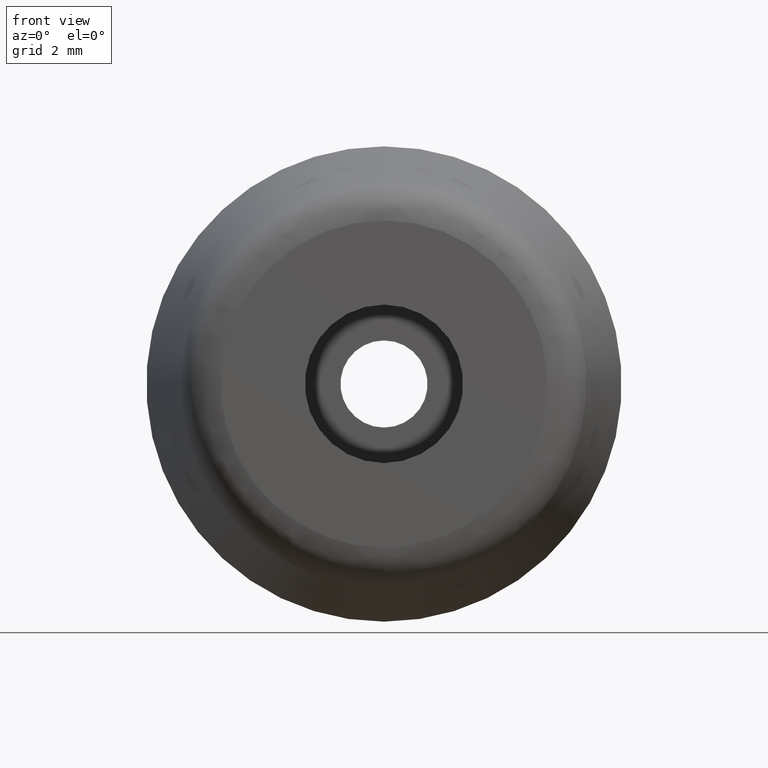
[diagram: clean part render]
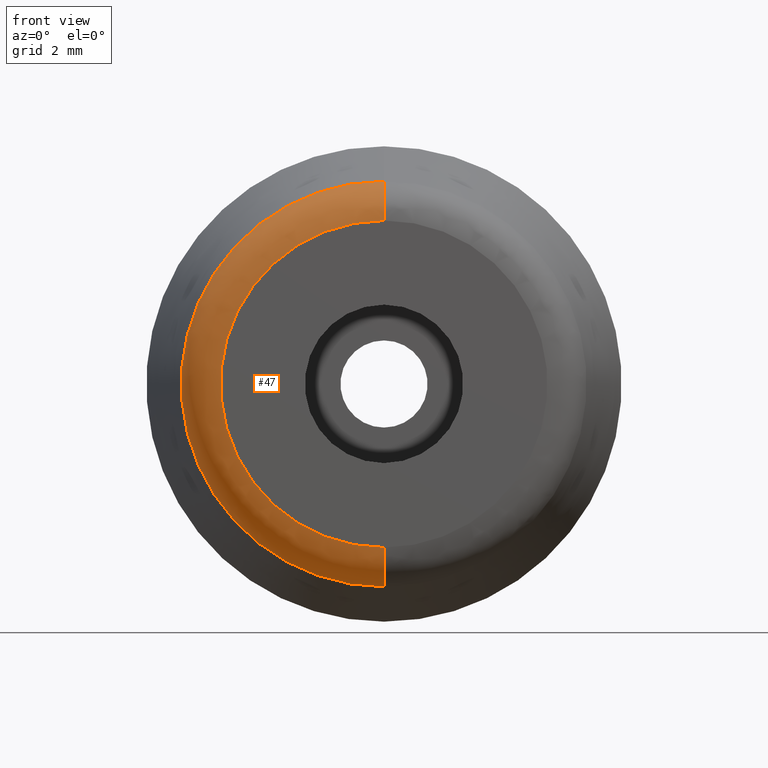
[diagram: same view with one face highlighted and labeled with its STEP entity id]
A machine part, front view. The second image highlights one B-rep face of the part: STEP entity #47.
In plain terms, the highlighted face is a freeform B-spline surface patch.
Its self-contained STEP definition (entity closure, byte-faithful):
#47=ADVANCED_FACE('',(#125),#124,.T.);
#124=( BOUNDED_SURFACE() B_SPLINE_SURFACE( 2,2,((#202,#203,#204,#205,#206),(#207,#208,#209,#210,#211),(#212,#213,#214,#215,#216),(#217,#218,#219,#220,#221),(#222,#223,#224,#225,#226)), .UNSPECIFIED.,.F.,.F.,.F.) B_SPLINE_SURFACE_WITH_KNOTS((3,2,3),(3,2,3),(0.00000000000E+00,5.00000000000E-01,1.00000000000E+00),(0.00000000000E+00,5.00000000000E-01,1.00000000000E+00), .UNSPECIFIED. ) GEOMETRIC_REPRESENTATION_ITEM() RATIONAL_B_SPLINE_SURFACE(((1.00000000000E+00,7.53363526039E-01,1.00000000000E+00,7.53363526039E-01,1.00000000000E+00),(7.07106781187E-01,5.32708457961E-01,7.07106781187E-01,5.32708457961E-01,7.07106781187E-01),(1.00000000000E+00,7.53363526039E-01,1.00000000000E+00,7.53363526039E-01,1.00000000000E+00),(7.07106781187E-01,5.32708457961E-01,7.07106781187E-01,5.32708457961E-01,7.07106781187E-01),(1.00000000000E+00,7.53363526039E-01,1.00000000000E+00,7.53363526039E-01,1.00000000000E+00))) REPRESENTATION_ITEM('') SURFACE() );
#125=FACE_OUTER_BOUND('',#227,.T.);
#202=CARTESIAN_POINT('',(3.46217121449E-14,-9.70266980710E+00,7.67690866267E+00));
#203=CARTESIAN_POINT('',(3.46433764922E-14,-1.10000000000E+01,7.50000000000E+00));
#204=CARTESIAN_POINT('',(3.48037186828E-14,-1.10000000000E+01,6.19066341060E+00));
#205=CARTESIAN_POINT('',(3.49640608735E-14,-1.10000000000E+01,4.88132682120E+00));
#206=CARTESIAN_POINT('',(3.49857252207E-14,-9.70266980710E+00,4.70441815854E+00));
#207=CARTESIAN_POINT('',(-7.67690866267E+00,-9.70266980710E+00,7.67690866267E+00));
#208=CARTESIAN_POINT('',(-7.50000000000E+00,-1.10000000000E+01,7.50000000000E+00));
#209=CARTESIAN_POINT('',(-6.19066341060E+00,-1.10000000000E+01,6.19066341060E+00));
#210=CARTESIAN_POINT('',(-4.88132682120E+00,-1.10000000000E+01,4.88132682120E+00));
#211=CARTESIAN_POINT('',(-4.70441815854E+00,-9.70266980710E+00,4.70441815854E+00));
#212=CARTESIAN_POINT('',(-7.67690866267E+00,-9.70266980710E+00,-4.70044031548E-16));
#213=CARTESIAN_POINT('',(-7.50000000000E+00,-1.10000000000E+01,-4.59212215687E-16));
#214=CARTESIAN_POINT('',(-6.19066341060E+00,-1.10000000000E+01,-3.79043768180E-16));
#215=CARTESIAN_POINT('',(-4.88132682120E+00,-1.10000000000E+01,-2.98875320674E-16));
#216=CARTESIAN_POINT('',(-4.70441815854E+00,-9.70266980710E+00,-2.88043504813E-16));
#217=CARTESIAN_POINT('',(-7.67690866267E+00,-9.70266980710E+00,-7.67690866267E+00));
#218=CARTESIAN_POINT('',(-7.50000000000E+00,-1.10000000000E+01,-7.50000000000E+00));
#219=CARTESIAN_POINT('',(-6.19066341060E+00,-1.10000000000E+01,-6.19066341060E+00));
#220=CARTESIAN_POINT('',(-4.88132682120E+00,-1.10000000000E+01,-4.88132682120E+00));
#221=CARTESIAN_POINT('',(-4.70441815854E+00,-9.70266980710E+00,-4.70441815854E+00));
#222=CARTESIAN_POINT('',(3.55618002080E-14,-9.70266980710E+00,-7.67690866267E+00));
#223=CARTESIAN_POINT('',(3.55618009235E-14,-1.10000000000E+01,-7.50000000000E+00));
#224=CARTESIAN_POINT('',(3.55618062192E-14,-1.10000000000E+01,-6.19066341060E+00));
#225=CARTESIAN_POINT('',(3.55618115148E-14,-1.10000000000E+01,-4.88132682120E+00));
#226=CARTESIAN_POINT('',(3.55618122304E-14,-9.70266980710E+00,-4.70441815854E+00));
#227=EDGE_LOOP('',(#304,#305,#306,#307));
#304=ORIENTED_EDGE('',*,*,#325,.F.);
#305=ORIENTED_EDGE('',*,*,#336,.F.);
#306=ORIENTED_EDGE('',*,*,#337,.T.);
#307=ORIENTED_EDGE('',*,*,#338,.T.);
#325=EDGE_CURVE('',#371,#370,#378,.T.);
#336=EDGE_CURVE('',#450,#371,#451,.T.);
#337=EDGE_CURVE('',#450,#457,#458,.T.);
#338=EDGE_CURVE('',#457,#370,#464,.T.);
#370=VERTEX_POINT('',#508);
#371=VERTEX_POINT('',#509);
#378=CIRCLE('',#517,6.19066341060E+00);
#450=VERTEX_POINT('',#556);
#451=(BOUNDED_CURVE() B_SPLINE_CURVE(2,(#557,#558,#559),.UNSPECIFIED.,.F.,.F.) B_SPLINE_CURVE_WITH_KNOTS((3,3),(0.00000000000E+00,5.00000000000E-01),.UNSPECIFIED.) CURVE() GEOMETRIC_REPRESENTATION_ITEM() RATIONAL_B_SPLINE_CURVE((1.00000000000E+00,7.53363526039E-01,1.00000000000E+00)) REPRESENTATION_ITEM('') );
#457=VERTEX_POINT('',#560);
#458=CIRCLE('',#564,7.67690866267E+00);
#464=(BOUNDED_CURVE() B_SPLINE_CURVE(3,(#565,#566,#567,#568,#569),.UNSPECIFIED.,.F.,.F.) B_SPLINE_CURVE_WITH_KNOTS((4,1,4),(0.00000000000E+00,2.50000002807E-01,5.00000004982E-01),.UNSPECIFIED.) CURVE() GEOMETRIC_REPRESENTATION_ITEM() RATIONAL_B_SPLINE_CURVE((1.00000000000E+00,1.00000000000E+00,1.00000000000E+00,1.00000000000E+00,1.00000000000E+00)) REPRESENTATION_ITEM('') );
#508=CARTESIAN_POINT('',(3.55271367880E-14,-1.10000000000E+01,-6.19066341060E+00));
#509=CARTESIAN_POINT('',(3.52310773148E-14,-1.10000000000E+01,6.19066341060E+00));
#514=CARTESIAN_POINT('',(3.55271367880E-14,-1.10000000000E+01,0.00000000000E+00));
#515=DIRECTION('',(0.00000000000E+00,-1.00000000000E+00,-0.00000000000E+00));
#516=DIRECTION('',(-1.22460635382E-16,0.00000000000E+00,-1.00000000000E+00));
#517=AXIS2_PLACEMENT_3D('',#514,#515,#516);
#556=CARTESIAN_POINT('',(3.64153152077E-14,-9.70266980710E+00,7.67690866267E+00));
#557=CARTESIAN_POINT('',(3.46217121449E-14,-9.70266980710E+00,7.67690866267E+00));
#558=CARTESIAN_POINT('',(3.46433764922E-14,-1.10000000000E+01,7.50000000000E+00));
#559=CARTESIAN_POINT('',(3.48037186828E-14,-1.10000000000E+01,6.19066341060E+00));
#560=CARTESIAN_POINT('',(3.55271367880E-14,-9.70266980710E+00,-7.67690866267E+00));
#561=CARTESIAN_POINT('',(3.55271367880E-14,-9.70266980710E+00,0.00000000000E+00));
#562=DIRECTION('',(0.00000000000E+00,-1.00000000000E+00,-0.00000000000E+00));
#563=DIRECTION('',(-1.22460635382E-16,0.00000000000E+00,-1.00000000000E+00));
#564=AXIS2_PLACEMENT_3D('',#561,#562,#563);
#565=CARTESIAN_POINT('',(3.67113746809E-14,-9.70266980710E+00,-7.67690866267E+00));
#566=CARTESIAN_POINT('',(3.65593392417E-14,-1.00557707688E+01,-7.63108971428E+00));
#567=CARTESIAN_POINT('',(3.63240075825E-14,-1.07310503019E+01,-7.26523619798E+00));
#568=CARTESIAN_POINT('',(3.63433326734E-14,-1.10023098108E+01,-6.54671722017E+00));
#569=CARTESIAN_POINT('',(3.64153152067E-14,-1.10000000000E+01,-6.19066339095E+00));